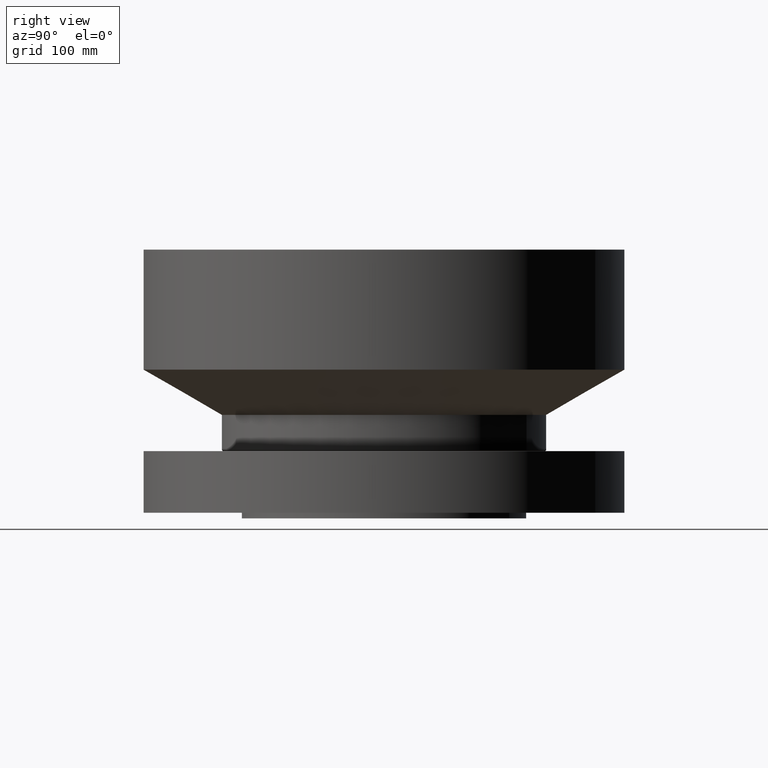
[diagram: clean part render]
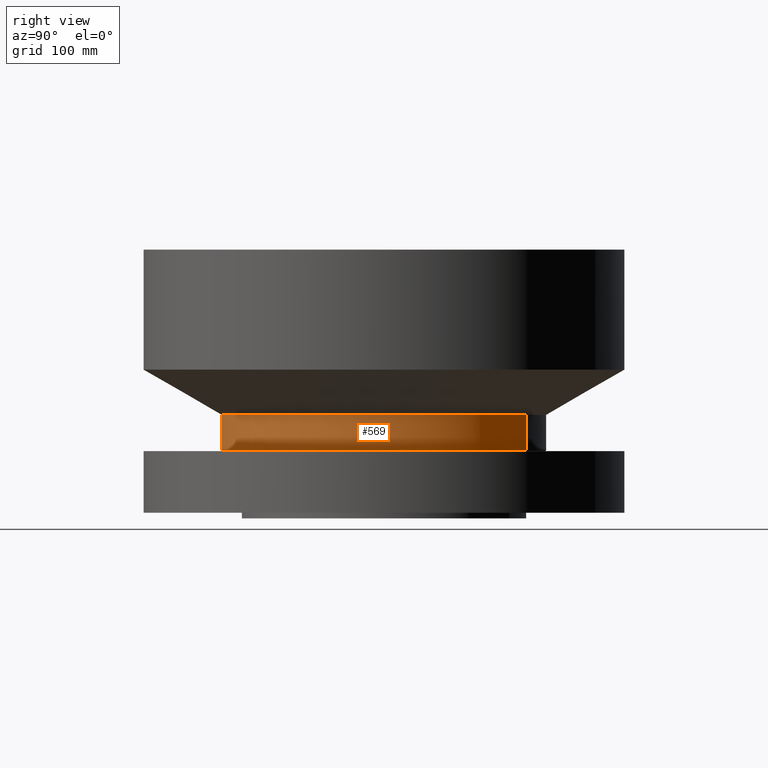
[diagram: same view with one face highlighted and labeled with its STEP entity id]
A machine part, right view. The second image highlights one B-rep face of the part: STEP entity #569.
In plain terms, the highlighted cylindrical surface (partial cylindrical patch) has radius 184.15 mm, axis along (0, 0, -1).
Its self-contained STEP definition (entity closure, byte-faithful):
#510=AXIS2_PLACEMENT_3D('Circle Axis2P3D',#508,#509,$) ;
#542=AXIS2_PLACEMENT_3D('Cylinder Axis2P3D',#539,#540,#541) ;
#553=AXIS2_PLACEMENT_3D('Circle Axis2P3D',#551,#552,$) ;
#505=CARTESIAN_POINT('Vertex',(3.47583515489,6.36247357373,2.79098076212)) ;
#508=CARTESIAN_POINT('Axis2P3D Location',(0.,0.,2.79098076212)) ;
#512=CARTESIAN_POINT('Vertex',(-3.47583515489,-6.36247357373,2.79098076212)) ;
#539=CARTESIAN_POINT('Axis2P3D Location',(0.,0.,5.75000000002)) ;
#544=CARTESIAN_POINT('Line Origine',(3.47583515489,6.36247357373,3.58049038107)) ;
#548=CARTESIAN_POINT('Vertex',(3.47583515489,6.36247357373,4.37000000002)) ;
#551=CARTESIAN_POINT('Axis2P3D Location',(0.,0.,4.37000000002)) ;
#555=CARTESIAN_POINT('Vertex',(-3.47583515489,-6.36247357373,4.37000000002)) ;
#558=CARTESIAN_POINT('Line Origine',(-3.47583515489,-6.36247357373,3.58049038107)) ;
#509=DIRECTION('Axis2P3D Direction',(-0.,0.,0.0393700787402)) ;
#540=DIRECTION('Axis2P3D Direction',(0.,0.,-0.0393700787402)) ;
#541=DIRECTION('Axis2P3D XDirection',(-0.0188750212049,-0.0345504945626,0.)) ;
#545=DIRECTION('Vector Direction',(0.,0.,-0.0393700787402)) ;
#552=DIRECTION('Axis2P3D Direction',(0.,0.,-0.0393700787402)) ;
#559=DIRECTION('Vector Direction',(0.,0.,-0.0393700787402)) ;
#546=VECTOR('Line Direction',#545,0.0393700787402) ;
#560=VECTOR('Line Direction',#559,0.0393700787402) ;
#564=ORIENTED_EDGE('',*,*,#514,.F.) ;
#565=ORIENTED_EDGE('',*,*,#550,.T.) ;
#566=ORIENTED_EDGE('',*,*,#557,.T.) ;
#567=ORIENTED_EDGE('',*,*,#562,.F.) ;
#569=ADVANCED_FACE('PartBody',(#568),#543,.T.) ;
#511=CIRCLE('generated circle',#510,7.25000000003) ;
#554=CIRCLE('generated circle',#553,7.25000000003) ;
#543=CYLINDRICAL_SURFACE('generated cylinder',#542,7.25000000003) ;
#514=EDGE_CURVE('',#506,#513,#511,.F.) ;
#550=EDGE_CURVE('',#506,#549,#547,.F.) ;
#557=EDGE_CURVE('',#549,#556,#554,.T.) ;
#562=EDGE_CURVE('',#513,#556,#561,.F.) ;
#563=EDGE_LOOP('',(#564,#565,#566,#567)) ;
#568=FACE_OUTER_BOUND('',#563,.T.) ;
#547=LINE('Line',#544,#546) ;
#561=LINE('Line',#558,#560) ;
#506=VERTEX_POINT('',#505) ;
#513=VERTEX_POINT('',#512) ;
#549=VERTEX_POINT('',#548) ;
#556=VERTEX_POINT('',#555) ;